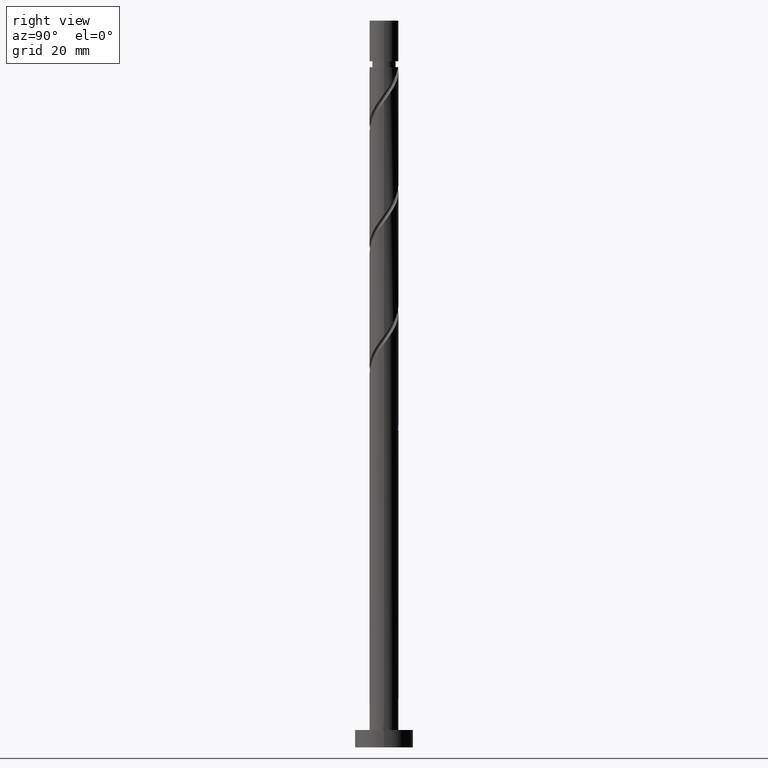
[diagram: clean part render]
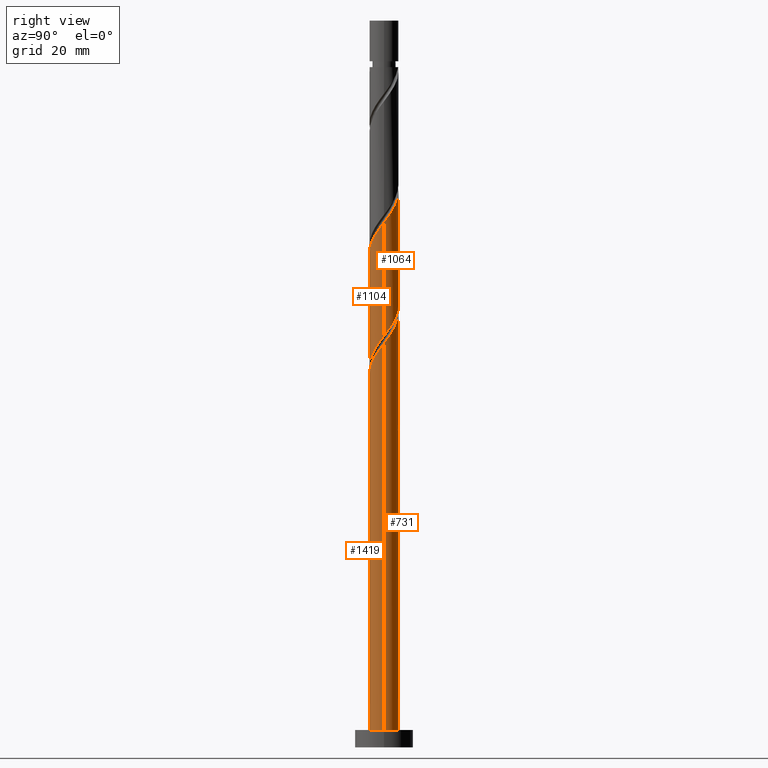
[diagram: same view with one multi-face feature highlighted, each face labeled with its STEP entity id]
A machine part, right view. The highlighted faces form ONE feature: a constant-radius fillet chain: 4 tangent blend faces with common blend radius 2.5 mm. The faces share edges in the B-rep.
Their STEP definitions:
[1] entity #1064 (Cylinder):
#18 = CARTESIAN_POINT ( 'NONE',  ( 1.574936960780884521, 1.981504166768771835, 73.76752431721585879 ) ) ;
#35 = CARTESIAN_POINT ( 'NONE',  ( 1.842554741020975495, 1.689672165344843435, 73.24669098388251598 ) ) ;
#40 = CARTESIAN_POINT ( 'NONE',  ( 2.176354451295369419, 1.230236279064654825, 91.99669098388248756 ) ) ;
#45 = VERTEX_POINT ( 'NONE', #702 ) ;
#78 = DIRECTION ( 'NONE',  ( -0.000000000000000000, -0.000000000000000000, -1.000000000000000000 ) ) ;
#127 = CARTESIAN_POINT ( 'NONE',  ( -2.274511107092401563, 1.037592995212145652, 99.28835765054915896 ) ) ;
#147 = CARTESIAN_POINT ( 'NONE',  ( -2.500000000000000000, 0.000000000000000000, 125.0000000000000000 ) ) ;
#152 = CARTESIAN_POINT ( 'NONE',  ( -2.371204735821961673, 0.8855355973484242416, 80.01752431721583037 ) ) ;
#172 = VERTEX_POINT ( 'NONE', #1423 ) ;
#192 = EDGE_CURVE ( 'NONE', #550, #45, #595, .T. ) ;
#207 = CARTESIAN_POINT ( 'NONE',  ( -2.500000000000000444, 3.103572276123601059E-15, 81.20316009201944496 ) ) ;
#219 = VERTEX_POINT ( 'NONE', #265 ) ;
#225 = AXIS2_PLACEMENT_3D ( 'NONE', #918, #78, #1166 ) ;
#257 = CARTESIAN_POINT ( 'NONE',  ( 2.274511107092399786, 1.037592995212144098, 72.20502431721585879 ) ) ;
#263 = CARTESIAN_POINT ( 'NONE',  ( 0.2839469933725896067, 2.483822478550889112, 95.12169098388250177 ) ) ;
#265 = CARTESIAN_POINT ( 'NONE',  ( -2.500000000000002665, -1.229434428222869666E-15, 100.7068885424122300 ) ) ;
#280 = CARTESIAN_POINT ( 'NONE',  ( 1.037592995212146318, 2.274511107092401563, 94.08002431721583037 ) ) ;
#371 = CARTESIAN_POINT ( 'NONE',  ( 2.500000000000000000, 0.1424343436160837306, 70.97600451456004578 ) ) ;
#379 = CARTESIAN_POINT ( 'NONE',  ( -2.500000000000000888, 0.2512594538147978618, 80.86885551661160321 ) ) ;
#384 = CARTESIAN_POINT ( 'NONE',  ( -2.483822478550889112, 0.2839469933725891626, 100.3300243172158588 ) ) ;
#397 = LINE ( 'NONE', #147, #1518 ) ;
#400 = CARTESIAN_POINT ( 'NONE',  ( 0.6773458265033748260, 2.438849692923736434, 94.60085765054918738 ) ) ;
#425 = DIRECTION ( 'NONE',  ( -0.000000000000000000, -0.000000000000000000, -1.000000000000000000 ) ) ;
#431 = FACE_OUTER_BOUND ( 'NONE', #1025, .T. ) ;
#487 = CARTESIAN_POINT ( 'NONE',  ( 2.500000000000003109, 2.218979211914447642E-15, 90.29022187574555858 ) ) ;
#498 = EDGE_CURVE ( 'NONE', #172, #45, #1019, .T. ) ;
#499 = CARTESIAN_POINT ( 'NONE',  ( -1.037592995212144542, 2.274511107092399342, 77.41335765054918738 ) ) ;
#507 = CARTESIAN_POINT ( 'NONE',  ( 0.1094518397581963065, 2.528795264178038238, 75.85085765054917317 ) ) ;
#512 = CARTESIAN_POINT ( 'NONE',  ( 2.371204735821965226, 0.8855355973484243526, 91.47585765054914475 ) ) ;
#514 = CARTESIAN_POINT ( 'NONE',  ( -2.500000000000000444, 3.103572276123601059E-15, 81.20316009201944496 ) ) ;
#550 = VERTEX_POINT ( 'NONE', #207 ) ;
#553 = CARTESIAN_POINT ( 'NONE',  ( 2.500000000000000000, 3.061616997868382648E-16, 125.0000000000000000 ) ) ;
#595 =( BOUNDED_CURVE ( )  B_SPLINE_CURVE ( 2, ( #514, #379, #876, #152, #1242, #1371, #1469, #972, #499, #1342, #1481, #507, #1460, #1363, #861, #18, #35, #1232, #257, #1349, #1356, #371, #1107 ),
 .UNSPECIFIED., .F., .T. ) 
 B_SPLINE_CURVE_WITH_KNOTS ( ( 3, 2, 2, 2, 2, 2, 2, 2, 2, 2, 2, 3 ),
 ( 0.6795322023138550271, 0.6875000000000000000, 0.6999999999999999556, 0.7125000000000000222, 0.7249999999999999778, 0.7375000000000000444, 0.7500000000000000000, 0.7624999999999999556, 0.7750000000000000222, 0.7874999999999999778, 0.8000000000000000444, 0.8045322023138551382 ),
 .UNSPECIFIED. ) 
 CURVE ( )  GEOMETRIC_REPRESENTATION_ITEM ( )  RATIONAL_B_SPLINE_CURVE ( ( 0.9039174447099354026, 0.9019565955404644786, 0.9090909090909129464, 0.8978984914501291215, 0.9090909090909129464, 0.8978984914501291215, 0.9090909090909129464, 0.8978984914501291215, 0.9090909090909129464, 0.8978984914501291215, 0.9090909090909129464, 0.8978984914501291215, 0.9090909090909129464, 0.8978984914501291215, 0.9090909090909129464, 0.8978984914501291215, 0.9090909090909129464, 0.8978984914501291215, 0.9090909090909129464, 0.8978984914501291215, 0.9090909090909129464, 0.9050328050005773672, 0.9039174447099351806 ) ) 
 REPRESENTATION_ITEM ( '' )  );
#609 = CARTESIAN_POINT ( 'NONE',  ( -2.500000000000003109, 0.1424343436160847298, 100.5173774532049720 ) ) ;
#623 = VECTOR ( 'NONE', #425, 1000.000000000000000 ) ;
#677 = CYLINDRICAL_SURFACE ( 'NONE', #225, 2.500000000000000000 ) ;
#692 =( BOUNDED_CURVE ( )  B_SPLINE_CURVE ( 2, ( #487, #1369, #982, #512, #40, #736, #1214, #1354, #280, #400, #263, #762, #1474, #1230, #729, #1346, #1240, #1128, #127, #743, #384, #609, #1361 ),
 .UNSPECIFIED., .F., .T. ) 
 B_SPLINE_CURVE_WITH_KNOTS ( ( 3, 2, 2, 2, 2, 2, 2, 2, 2, 2, 2, 3 ),
 ( 0.4295322023138553047, 0.4375000000000000000, 0.4499999999999999556, 0.4625000000000000222, 0.4749999999999999778, 0.4875000000000000444, 0.5000000000000000000, 0.5124999999999999556, 0.5250000000000000222, 0.5374999999999999778, 0.5500000000000000444, 0.5545322023138551382 ),
 .UNSPECIFIED. ) 
 CURVE ( )  GEOMETRIC_REPRESENTATION_ITEM ( )  RATIONAL_B_SPLINE_CURVE ( ( 0.9039174447099396215, 0.9019565955404691415, 0.9090909090909173873, 0.8978984914501335624, 0.9090909090909173873, 0.8978984914501335624, 0.9090909090909173873, 0.8978984914501335624, 0.9090909090909173873, 0.8978984914501335624, 0.9090909090909173873, 0.8978984914501335624, 0.9090909090909173873, 0.8978984914501335624, 0.9090909090909173873, 0.8978984914501335624, 0.9090909090909173873, 0.8978984914501335624, 0.9090909090909173873, 0.8978984914501335624, 0.9090909090909173873, 0.9050328050005818081, 0.9039174447099396215 ) ) 
 REPRESENTATION_ITEM ( '' )  );
#702 = CARTESIAN_POINT ( 'NONE',  ( 2.500000000000000444, 3.643323976319009630E-15, 70.78649342535277356 ) ) ;
#729 = CARTESIAN_POINT ( 'NONE',  ( -1.230236279064655269, 2.176354451295369419, 97.20502431721584458 ) ) ;
#736 = CARTESIAN_POINT ( 'NONE',  ( 1.981504166768774056, 1.574936960780884743, 92.51752431721583037 ) ) ;
#743 = CARTESIAN_POINT ( 'NONE',  ( -2.438849692923736434, 0.6773458265033741599, 99.80919098388250177 ) ) ;
#762 = CARTESIAN_POINT ( 'NONE',  ( -0.1094518397581954738, 2.528795264178041347, 95.64252431721583037 ) ) ;
#856 = EDGE_CURVE ( 'NONE', #172, #219, #692, .T. ) ;
#861 = CARTESIAN_POINT ( 'NONE',  ( 1.230236279064654825, 2.176354451295366754, 74.28835765054917317 ) ) ;
#876 = CARTESIAN_POINT ( 'NONE',  ( -2.450000000000001066, 0.4974937185533104822, 80.53835765054918738 ) ) ;
#917 = ORIENTED_EDGE ( 'NONE', *, *, #856, .F. ) ;
#918 = CARTESIAN_POINT ( 'NONE',  ( 0.000000000000000000, 0.000000000000000000, 125.0000000000000000 ) ) ;
#972 = CARTESIAN_POINT ( 'NONE',  ( -1.397840163920915035, 2.110172521261064915, 77.93419098388251598 ) ) ;
#982 = CARTESIAN_POINT ( 'NONE',  ( 2.450000000000002842, 0.4974937185533100381, 90.95502431721581615 ) ) ;
#988 = DIRECTION ( 'NONE',  ( -0.000000000000000000, -0.000000000000000000, -1.000000000000000000 ) ) ;
#1019 = LINE ( 'NONE', #553, #623 ) ;
#1025 = EDGE_LOOP ( 'NONE', ( #917, #1367, #1102, #1504 ) ) ;
#1064 = ADVANCED_FACE ( 'NONE', ( #431 ), #677, .T. ) ;
#1102 = ORIENTED_EDGE ( 'NONE', *, *, #192, .F. ) ;
#1107 = CARTESIAN_POINT ( 'NONE',  ( 2.500000000000000444, 3.643323976319009630E-15, 70.78649342535277356 ) ) ;
#1128 = CARTESIAN_POINT ( 'NONE',  ( -2.110172521261066247, 1.397840163920917034, 98.76752431721583037 ) ) ;
#1166 = DIRECTION ( 'NONE',  ( -1.000000000000000000, 0.000000000000000000, 0.000000000000000000 ) ) ;
#1214 = CARTESIAN_POINT ( 'NONE',  ( 1.689672165344845656, 1.842554741020975273, 93.03835765054918738 ) ) ;
#1230 = CARTESIAN_POINT ( 'NONE',  ( -0.8855355973484247967, 2.371204735821965226, 96.68419098388251598 ) ) ;
#1232 = CARTESIAN_POINT ( 'NONE',  ( 2.110172521261064915, 1.397840163920914813, 72.72585765054915896 ) ) ;
#1240 = CARTESIAN_POINT ( 'NONE',  ( -1.842554741020976161, 1.689672165344845434, 98.24669098388248756 ) ) ;
#1242 = CARTESIAN_POINT ( 'NONE',  ( -2.176354451295366754, 1.230236279064654159, 79.49669098388250177 ) ) ;
#1342 = CARTESIAN_POINT ( 'NONE',  ( -0.6773458265033730497, 2.438849692923733770, 76.89252431721585879 ) ) ;
#1346 = CARTESIAN_POINT ( 'NONE',  ( -1.574936960780885409, 1.981504166768773390, 97.72585765054915896 ) ) ;
#1349 = CARTESIAN_POINT ( 'NONE',  ( 2.438849692923734214, 0.6773458265033729386, 71.68419098388254440 ) ) ;
#1354 = CARTESIAN_POINT ( 'NONE',  ( 1.397840163920917478, 2.110172521261065803, 93.55919098388248756 ) ) ;
#1356 = CARTESIAN_POINT ( 'NONE',  ( 2.483822478550886892, 0.2839469933725879969, 71.16335765054918738 ) ) ;
#1361 = CARTESIAN_POINT ( 'NONE',  ( -2.500000000000003109, -1.229434428222869666E-15, 100.7068885424122300 ) ) ;
#1363 = CARTESIAN_POINT ( 'NONE',  ( 0.8855355973484245746, 2.371204735821961673, 74.80919098388250177 ) ) ;
#1367 = ORIENTED_EDGE ( 'NONE', *, *, #498, .T. ) ;
#1369 = CARTESIAN_POINT ( 'NONE',  ( 2.500000000000002220, 0.2512594538148057999, 90.62452645115342875 ) ) ;
#1371 = CARTESIAN_POINT ( 'NONE',  ( -1.981504166768771835, 1.574936960780884299, 78.97585765054917317 ) ) ;
#1423 = CARTESIAN_POINT ( 'NONE',  ( 2.500000000000002665, 2.218979211914447642E-15, 90.29022187574555858 ) ) ;
#1460 = CARTESIAN_POINT ( 'NONE',  ( 0.4974937185533109263, 2.450000000000001066, 75.33002431721584458 ) ) ;
#1469 = CARTESIAN_POINT ( 'NONE',  ( -1.689672165344843657, 1.842554741020974607, 78.45502431721583037 ) ) ;
#1474 = CARTESIAN_POINT ( 'NONE',  ( -0.4974937185533098716, 2.450000000000002842, 96.16335765054917317 ) ) ;
#1481 = CARTESIAN_POINT ( 'NONE',  ( -0.2839469933725883299, 2.483822478550886892, 76.37169098388251598 ) ) ;
#1504 = ORIENTED_EDGE ( 'NONE', *, *, #1556, .F. ) ;
#1518 = VECTOR ( 'NONE', #988, 1000.000000000000000 ) ;
#1556 = EDGE_CURVE ( 'NONE', #219, #550, #397, .T. ) ;
[2] entity #1104 (Cylinder):
#4 = ORIENTED_EDGE ( 'NONE', *, *, #475, .T. ) ;
#10 = CARTESIAN_POINT ( 'NONE',  ( 0.000000000000000000, 0.000000000000000000, 125.0000000000000000 ) ) ;
#45 = VERTEX_POINT ( 'NONE', #702 ) ;
#58 = CARTESIAN_POINT ( 'NONE',  ( 2.500000000000000444, 3.643323976319009630E-15, 70.78649342535277356 ) ) ;
#88 = LINE ( 'NONE', #1027, #777 ) ;
#90 = CARTESIAN_POINT ( 'NONE',  ( 1.981504166768771835, -1.574936960780884521, 68.55919098388250177 ) ) ;
#137 = CARTESIAN_POINT ( 'NONE',  ( -0.2839469933725891626, -2.483822478550889112, 84.70502431721584458 ) ) ;
#172 = VERTEX_POINT ( 'NONE', #1423 ) ;
#184 = CARTESIAN_POINT ( 'NONE',  ( 2.371204735821961673, -0.8855355973484245746, 69.60085765054918738 ) ) ;
#229 = CARTESIAN_POINT ( 'NONE',  ( 1.230236279064655269, -2.176354451295369419, 86.78835765054917317 ) ) ;
#295 = CARTESIAN_POINT ( 'NONE',  ( 0.6773458265033729386, -2.438849692923733770, 66.47585765054917317 ) ) ;
#308 = EDGE_CURVE ( 'NONE', #45, #774, #378, .T. ) ;
#327 = ORIENTED_EDGE ( 'NONE', *, *, #498, .F. ) ;
#332 = CARTESIAN_POINT ( 'NONE',  ( 2.500000000000000888, -0.2512594538148015810, 70.45218884994493180 ) ) ;
#353 = CARTESIAN_POINT ( 'NONE',  ( 0.1094518397581957375, -2.528795264178041347, 85.22585765054917317 ) ) ;
#359 = FACE_OUTER_BOUND ( 'NONE', #621, .T. ) ;
#378 =( BOUNDED_CURVE ( )  B_SPLINE_CURVE ( 2, ( #58, #332, #907, #184, #568, #90, #1316, #1395, #1014, #295, #521, #658, #708, #1184, #1379, #1553, #822, #1495, #1257, #771, #577, #1308, #1265 ),
 .UNSPECIFIED., .F., .T. ) 
 B_SPLINE_CURVE_WITH_KNOTS ( ( 3, 2, 2, 2, 2, 2, 2, 2, 2, 2, 2, 3 ),
 ( 0.8045322023138551382, 0.8125000000000000000, 0.8249999999999999556, 0.8375000000000000222, 0.8499999999999999778, 0.8625000000000000444, 0.8750000000000000000, 0.8874999999999999556, 0.9000000000000000222, 0.9124999999999999778, 0.9250000000000000444, 0.9295322023138552492 ),
 .UNSPECIFIED. ) 
 CURVE ( )  GEOMETRIC_REPRESENTATION_ITEM ( )  RATIONAL_B_SPLINE_CURVE ( ( 0.9039174447099351806, 0.9019565955404644786, 0.9090909090909129464, 0.8978984914501291215, 0.9090909090909129464, 0.8978984914501291215, 0.9090909090909129464, 0.8978984914501291215, 0.9090909090909129464, 0.8978984914501291215, 0.9090909090909129464, 0.8978984914501291215, 0.9090909090909129464, 0.8978984914501291215, 0.9090909090909129464, 0.8978984914501291215, 0.9090909090909129464, 0.8978984914501291215, 0.9090909090909129464, 0.8978984914501291215, 0.9090909090909129464, 0.9050328050005773672, 0.9039174447099351806 ) ) 
 REPRESENTATION_ITEM ( '' )  );
#425 = DIRECTION ( 'NONE',  ( -0.000000000000000000, -0.000000000000000000, -1.000000000000000000 ) ) ;
#475 = EDGE_CURVE ( 'NONE', #1549, #774, #88, .T. ) ;
#479 = CARTESIAN_POINT ( 'NONE',  ( 2.500000000000003109, 2.218979211914447642E-15, 90.29022187574555858 ) ) ;
#485 = CARTESIAN_POINT ( 'NONE',  ( 0.8855355973484244636, -2.371204735821965226, 86.26752431721581615 ) ) ;
#490 = CARTESIAN_POINT ( 'NONE',  ( 0.4974937185533101491, -2.450000000000002842, 85.74669098388247335 ) ) ;
#498 = EDGE_CURVE ( 'NONE', #172, #45, #1019, .T. ) ;
#521 = CARTESIAN_POINT ( 'NONE',  ( 0.2839469933725881079, -2.483822478550886892, 65.95502431721584458 ) ) ;
#553 = CARTESIAN_POINT ( 'NONE',  ( 2.500000000000000000, 3.061616997868382648E-16, 125.0000000000000000 ) ) ;
#568 = CARTESIAN_POINT ( 'NONE',  ( 2.176354451295366754, -1.230236279064654825, 69.08002431721584458 ) ) ;
#577 = CARTESIAN_POINT ( 'NONE',  ( -2.483822478550886892, -0.2839469933725882189, 60.74669098388251598 ) ) ;
#598 = CARTESIAN_POINT ( 'NONE',  ( -2.176354451295369419, -1.230236279064655269, 81.58002431721584458 ) ) ;
#612 = CARTESIAN_POINT ( 'NONE',  ( -1.037592995212145874, -2.274511107092401563, 83.66335765054917317 ) ) ;
#619 = CARTESIAN_POINT ( 'NONE',  ( 2.483822478550889112, -0.2839469933725892181, 89.91335765054917317 ) ) ;
#621 = EDGE_LOOP ( 'NONE', ( #327, #760, #4, #1253 ) ) ;
#623 = VECTOR ( 'NONE', #425, 1000.000000000000000 ) ;
#658 = CARTESIAN_POINT ( 'NONE',  ( -0.1094518397581966396, -2.528795264178038238, 65.43419098388250177 ) ) ;
#702 = CARTESIAN_POINT ( 'NONE',  ( 2.500000000000000444, 3.643323976319009630E-15, 70.78649342535277356 ) ) ;
#708 = CARTESIAN_POINT ( 'NONE',  ( -0.4974937185533105377, -2.450000000000001066, 64.91335765054918738 ) ) ;
#724 = CARTESIAN_POINT ( 'NONE',  ( -2.500000000000002220, -0.2512594538148079648, 80.20785978448678577 ) ) ;
#739 = CARTESIAN_POINT ( 'NONE',  ( -2.371204735821965226, -0.8855355973484246856, 81.05919098388251598 ) ) ;
#760 = ORIENTED_EDGE ( 'NONE', *, *, #1092, .F. ) ;
#771 = CARTESIAN_POINT ( 'NONE',  ( -2.438849692923733770, -0.6773458265033730497, 61.26752431721585168 ) ) ;
#774 = VERTEX_POINT ( 'NONE', #1222 ) ;
#777 = VECTOR ( 'NONE', #1054, 1000.000000000000000 ) ;
#822 = CARTESIAN_POINT ( 'NONE',  ( -1.842554741020975051, -1.689672165344843435, 62.83002431721583747 ) ) ;
#842 = CARTESIAN_POINT ( 'NONE',  ( 2.110172521261065803, -1.397840163920917478, 88.35085765054917317 ) ) ;
#855 = CARTESIAN_POINT ( 'NONE',  ( -2.500000000000002665, -2.503848164795356253E-15, 79.87355520907890138 ) ) ;
#859 =( BOUNDED_CURVE ( )  B_SPLINE_CURVE ( 2, ( #1087, #724, #965, #739, #598, #1574, #1094, #1077, #612, #1455, #137, #353, #490, #485, #229, #973, #1204, #842, #951, #1108, #619, #1225, #479 ),
 .UNSPECIFIED., .F., .T. ) 
 B_SPLINE_CURVE_WITH_KNOTS ( ( 3, 2, 2, 2, 2, 2, 2, 2, 2, 2, 2, 3 ),
 ( 0.3045322023138553602, 0.3125000000000000000, 0.3249999999999999556, 0.3375000000000000222, 0.3499999999999999778, 0.3625000000000000444, 0.3750000000000000000, 0.3874999999999999556, 0.4000000000000000222, 0.4124999999999999778, 0.4250000000000000444, 0.4295322023138553047 ),
 .UNSPECIFIED. ) 
 CURVE ( )  GEOMETRIC_REPRESENTATION_ITEM ( )  RATIONAL_B_SPLINE_CURVE ( ( 0.9039174447099396215, 0.9019565955404691415, 0.9090909090909173873, 0.8978984914501335624, 0.9090909090909173873, 0.8978984914501335624, 0.9090909090909173873, 0.8978984914501335624, 0.9090909090909173873, 0.8978984914501335624, 0.9090909090909173873, 0.8978984914501335624, 0.9090909090909173873, 0.8978984914501335624, 0.9090909090909173873, 0.8978984914501335624, 0.9090909090909173873, 0.8978984914501335624, 0.9090909090909173873, 0.8978984914501335624, 0.9090909090909173873, 0.9050328050005818081, 0.9039174447099396215 ) ) 
 REPRESENTATION_ITEM ( '' )  );
#907 = CARTESIAN_POINT ( 'NONE',  ( 2.450000000000001066, -0.4974937185533107042, 70.12169098388251598 ) ) ;
#951 = CARTESIAN_POINT ( 'NONE',  ( 2.274511107092401563, -1.037592995212145874, 88.87169098388250177 ) ) ;
#965 = CARTESIAN_POINT ( 'NONE',  ( -2.450000000000002842, -0.4974937185533103712, 80.53835765054917317 ) ) ;
#973 = CARTESIAN_POINT ( 'NONE',  ( 1.574936960780884743, -1.981504166768773390, 87.30919098388250177 ) ) ;
#1014 = CARTESIAN_POINT ( 'NONE',  ( 1.037592995212144320, -2.274511107092399342, 66.99669098388251598 ) ) ;
#1019 = LINE ( 'NONE', #553, #623 ) ;
#1027 = CARTESIAN_POINT ( 'NONE',  ( -2.500000000000000000, 0.000000000000000000, 125.0000000000000000 ) ) ;
#1031 = AXIS2_PLACEMENT_3D ( 'NONE', #10, #1329, #1470 ) ;
#1054 = DIRECTION ( 'NONE',  ( -0.000000000000000000, -0.000000000000000000, -1.000000000000000000 ) ) ;
#1077 = CARTESIAN_POINT ( 'NONE',  ( -1.397840163920917034, -2.110172521261065803, 83.14252431721583037 ) ) ;
#1087 = CARTESIAN_POINT ( 'NONE',  ( -2.500000000000003109, -2.503848164795356253E-15, 79.87355520907890138 ) ) ;
#1092 = EDGE_CURVE ( 'NONE', #1549, #172, #859, .T. ) ;
#1094 = CARTESIAN_POINT ( 'NONE',  ( -1.689672165344845434, -1.842554741020975939, 82.62169098388251598 ) ) ;
#1104 = ADVANCED_FACE ( 'NONE', ( #359 ), #1461, .T. ) ;
#1108 = CARTESIAN_POINT ( 'NONE',  ( 2.438849692923736434, -0.6773458265033743819, 89.39252431721584458 ) ) ;
#1184 = CARTESIAN_POINT ( 'NONE',  ( -0.8855355973484244636, -2.371204735821961673, 64.39252431721584458 ) ) ;
#1204 = CARTESIAN_POINT ( 'NONE',  ( 1.842554741020975939, -1.689672165344845434, 87.83002431721585879 ) ) ;
#1222 = CARTESIAN_POINT ( 'NONE',  ( -2.500000000000000444, 3.103572276123601059E-15, 60.36982675868610215 ) ) ;
#1225 = CARTESIAN_POINT ( 'NONE',  ( 2.500000000000003109, -0.1424343436160797616, 90.10071078653828636 ) ) ;
#1253 = ORIENTED_EDGE ( 'NONE', *, *, #308, .F. ) ;
#1257 = CARTESIAN_POINT ( 'NONE',  ( -2.274511107092399342, -1.037592995212144320, 61.78835765054919449 ) ) ;
#1265 = CARTESIAN_POINT ( 'NONE',  ( -2.500000000000000444, 3.103572276123601059E-15, 60.36982675868610215 ) ) ;
#1308 = CARTESIAN_POINT ( 'NONE',  ( -2.500000000000000444, -0.1424343436160804832, 60.55933784789338148 ) ) ;
#1316 = CARTESIAN_POINT ( 'NONE',  ( 1.689672165344843435, -1.842554741020975051, 68.03835765054917317 ) ) ;
#1329 = DIRECTION ( 'NONE',  ( -0.000000000000000000, -0.000000000000000000, -1.000000000000000000 ) ) ;
#1379 = CARTESIAN_POINT ( 'NONE',  ( -1.230236279064654381, -2.176354451295366754, 63.87169098388252308 ) ) ;
#1395 = CARTESIAN_POINT ( 'NONE',  ( 1.397840163920915035, -2.110172521261064915, 67.51752431721583037 ) ) ;
#1423 = CARTESIAN_POINT ( 'NONE',  ( 2.500000000000002665, 2.218979211914447642E-15, 90.29022187574555858 ) ) ;
#1455 = CARTESIAN_POINT ( 'NONE',  ( -0.6773458265033743819, -2.438849692923736434, 84.18419098388250177 ) ) ;
#1461 = CYLINDRICAL_SURFACE ( 'NONE', #1031, 2.500000000000000000 ) ;
#1470 = DIRECTION ( 'NONE',  ( -1.000000000000000000, 0.000000000000000000, 0.000000000000000000 ) ) ;
#1495 = CARTESIAN_POINT ( 'NONE',  ( -2.110172521261064915, -1.397840163920915035, 62.30919098388250177 ) ) ;
#1549 = VERTEX_POINT ( 'NONE', #855 ) ;
#1553 = CARTESIAN_POINT ( 'NONE',  ( -1.574936960780884521, -1.981504166768771835, 63.35085765054918028 ) ) ;
#1574 = CARTESIAN_POINT ( 'NONE',  ( -1.981504166768773390, -1.574936960780885409, 82.10085765054917317 ) ) ;
[3] entity #731 (Cylinder):
#2 = CARTESIAN_POINT ( 'NONE',  ( 2.371204735821965226, 0.8855355973484243526, 70.64252431721580194 ) ) ;
#5 = DIRECTION ( 'NONE',  ( 0.000000000000000000, 1.000000000000000000, -8.326672684688674053E-15 ) ) ;
#9 = CARTESIAN_POINT ( 'NONE',  ( -1.397840163920915035, 2.110172521261064915, 57.10085765054915896 ) ) ;
#16 = VECTOR ( 'NONE', #1099, 1000.000000000000000 ) ;
#21 = VERTEX_POINT ( 'NONE', #1086 ) ;
#23 = CARTESIAN_POINT ( 'NONE',  ( -2.500000000000000000, 0.000000000000000000, 125.0000000000000000 ) ) ;
#27 = CARTESIAN_POINT ( 'NONE',  ( -2.176354451295366754, 1.230236279064654159, 58.66335765054917317 ) ) ;
#32 = CARTESIAN_POINT ( 'NONE',  ( 2.500000000000002665, 2.218979211914447642E-15, 69.45688854241222998 ) ) ;
#42 = CARTESIAN_POINT ( 'NONE',  ( -0.2839469933725883299, 2.483822478550886892, 55.53835765054918738 ) ) ;
#88 = LINE ( 'NONE', #1027, #777 ) ;
#106 = CYLINDRICAL_SURFACE ( 'NONE', #495, 2.500000000000000000 ) ;
#114 = CARTESIAN_POINT ( 'NONE',  ( -2.483822478550889112, 0.2839469933725891626, 58.66335765054915896 ) ) ;
#145 = CARTESIAN_POINT ( 'NONE',  ( -2.499999999999999556, 0.2512594538148047452, 60.03552218327826040 ) ) ;
#159 =( BOUNDED_CURVE ( )  B_SPLINE_CURVE ( 2, ( #234, #1093, #484, #1069, #711, #1202, #589, #717, #114, #597, #1573 ),
 .UNSPECIFIED., .F., .T. ) 
 B_SPLINE_CURVE_WITH_KNOTS ( ( 3, 2, 2, 2, 2, 3 ),
 ( 0.000000000000000000, 0.01249999999999995559, 0.02500000000000002220, 0.03749999999999997780, 0.05000000000000004441, 0.05453220231385519368 ),
 .UNSPECIFIED. ) 
 CURVE ( )  GEOMETRIC_REPRESENTATION_ITEM ( )  RATIONAL_B_SPLINE_CURVE ( ( 0.9090909090909173873, 0.8978984914501335624, 0.9090909090909173873, 0.8978984914501335624, 0.9090909090909173873, 0.8978984914501335624, 0.9090909090909173873, 0.8978984914501335624, 0.9090909090909173873, 0.9050328050005818081, 0.9039174447099396215 ) ) 
 REPRESENTATION_ITEM ( '' )  );
#170 = EDGE_CURVE ( 'NONE', #1126, #493, #159, .T. ) ;
#209 = CARTESIAN_POINT ( 'NONE',  ( -2.500000000000003109, -2.503848164795356253E-15, 79.87355520907890138 ) ) ;
#217 = CARTESIAN_POINT ( 'NONE',  ( 0.000000000000000000, 0.000000000000000000, 3.000000000000000000 ) ) ;
#234 = CARTESIAN_POINT ( 'NONE',  ( -0.4974937185533098716, 2.450000000000002842, 54.49669098388250887 ) ) ;
#238 = CARTESIAN_POINT ( 'NONE',  ( -2.483822478550889112, 0.2839469933725891626, 79.49669098388251598 ) ) ;
#240 = EDGE_CURVE ( 'NONE', #767, #423, #635, .T. ) ;
#256 = EDGE_CURVE ( 'NONE', #774, #21, #370, .T. ) ;
#261 = ORIENTED_EDGE ( 'NONE', *, *, #256, .F. ) ;
#290 = ORIENTED_EDGE ( 'NONE', *, *, #1203, .T. ) ;
#349 = CIRCLE ( 'NONE', #546, 2.500000000000000000 ) ;
#356 = CARTESIAN_POINT ( 'NONE',  ( 2.450000000000002842, 0.4974937185533100381, 70.12169098388251598 ) ) ;
#362 = CARTESIAN_POINT ( 'NONE',  ( 0.2839469933725896067, 2.483822478550889112, 74.28835765054917317 ) ) ;
#365 = CARTESIAN_POINT ( 'NONE',  ( -0.4974937185533098716, 2.450000000000002842, 54.49669098388250177 ) ) ;
#370 =( BOUNDED_CURVE ( )  B_SPLINE_CURVE ( 2, ( #986, #145, #1116, #1250, #27, #387, #756, #9, #999, #1488, #42, #1224, #395 ),
 .UNSPECIFIED., .F., .T. ) 
 B_SPLINE_CURVE_WITH_KNOTS ( ( 3, 2, 2, 2, 2, 2, 3 ),
 ( 0.9295322023138552492, 0.9375000000000000000, 0.9499999999999999556, 0.9625000000000000222, 0.9749999999999999778, 0.9875000000000000444, 1.000000000000000000 ),
 .UNSPECIFIED. ) 
 CURVE ( )  GEOMETRIC_REPRESENTATION_ITEM ( )  RATIONAL_B_SPLINE_CURVE ( ( 0.9039174447099351806, 0.9019565955404647006, 0.9090909090909129464, 0.8978984914501291215, 0.9090909090909129464, 0.8978984914501291215, 0.9090909090909129464, 0.8978984914501291215, 0.9090909090909129464, 0.8978984914501291215, 0.9090909090909129464, 0.8978984914501291215, 0.9090909090909129464 ) ) 
 REPRESENTATION_ITEM ( '' )  );
#387 = CARTESIAN_POINT ( 'NONE',  ( -1.981504166768771835, 1.574936960780884299, 58.14252431721583037 ) ) ;
#395 = CARTESIAN_POINT ( 'NONE',  ( 0.4974937185533109263, 2.450000000000000622, 54.49669098388249466 ) ) ;
#406 = ORIENTED_EDGE ( 'NONE', *, *, #170, .F. ) ;
#423 = VERTEX_POINT ( 'NONE', #1416 ) ;
#444 = VECTOR ( 'NONE', #616, 1000.000000000000000 ) ;
#452 = DIRECTION ( 'NONE',  ( -1.000000000000000000, 0.000000000000000000, 0.000000000000000000 ) ) ;
#466 = CARTESIAN_POINT ( 'NONE',  ( 1.981504166768774056, 1.574936960780884743, 71.68419098388253019 ) ) ;
#469 = ORIENTED_EDGE ( 'NONE', *, *, #240, .T. ) ;
#475 = EDGE_CURVE ( 'NONE', #1549, #774, #88, .T. ) ;
#476 = CARTESIAN_POINT ( 'NONE',  ( -2.274511107092401563, 1.037592995212145652, 78.45502431721581615 ) ) ;
#482 = CARTESIAN_POINT ( 'NONE',  ( 1.689672165344845656, 1.842554741020975273, 72.20502431721583037 ) ) ;
#484 = CARTESIAN_POINT ( 'NONE',  ( -1.230236279064655269, 2.176354451295369419, 55.53835765054917317 ) ) ;
#493 = VERTEX_POINT ( 'NONE', #1517 ) ;
#495 = AXIS2_PLACEMENT_3D ( 'NONE', #586, #603, #452 ) ;
#546 = AXIS2_PLACEMENT_3D ( 'NONE', #848, #1335, #5 ) ;
#586 = CARTESIAN_POINT ( 'NONE',  ( 0.000000000000000000, 0.000000000000000000, 125.0000000000000000 ) ) ;
#589 = CARTESIAN_POINT ( 'NONE',  ( -2.274511107092401563, 1.037592995212145652, 57.62169098388250887 ) ) ;
#593 = CARTESIAN_POINT ( 'NONE',  ( 1.037592995212146318, 2.274511107092401563, 73.24669098388250177 ) ) ;
#597 = CARTESIAN_POINT ( 'NONE',  ( -2.500000000000003109, 0.1424343436160830090, 58.85071078653830057 ) ) ;
#603 = DIRECTION ( 'NONE',  ( -0.000000000000000000, -0.000000000000000000, -1.000000000000000000 ) ) ;
#616 = DIRECTION ( 'NONE',  ( -0.000000000000000000, -0.000000000000000000, -1.000000000000000000 ) ) ;
#624 = LINE ( 'NONE', #23, #444 ) ;
#635 = LINE ( 'NONE', #745, #16 ) ;
#640 = EDGE_CURVE ( 'NONE', #767, #1549, #1300, .T. ) ;
#668 = EDGE_LOOP ( 'NONE', ( #1165, #469, #1523, #1558, #406, #290, #261, #1017 ) ) ;
#689 = CARTESIAN_POINT ( 'NONE',  ( -2.500000000000003109, 0.1424343436160777909, 79.68404411987164337 ) ) ;
#711 = CARTESIAN_POINT ( 'NONE',  ( -1.842554741020976161, 1.689672165344845434, 56.58002431721583747 ) ) ;
#717 = CARTESIAN_POINT ( 'NONE',  ( -2.438849692923736434, 0.6773458265033741599, 58.14252431721581615 ) ) ;
#731 = ADVANCED_FACE ( 'NONE', ( #1547 ), #106, .T. ) ;
#745 = CARTESIAN_POINT ( 'NONE',  ( 2.500000000000000000, 3.061616997868382648E-16, 125.0000000000000000 ) ) ;
#747 = CARTESIAN_POINT ( 'NONE',  ( -2.500000000000000000, 0.000000000000000000, 3.000000000000000000 ) ) ;
#749 = EDGE_CURVE ( 'NONE', #423, #1439, #751, .T. ) ;
#751 = CIRCLE ( 'NONE', #805, 2.500000000000000000 ) ;
#756 = CARTESIAN_POINT ( 'NONE',  ( -1.689672165344843657, 1.842554741020974607, 57.62169098388253019 ) ) ;
#758 = EDGE_CURVE ( 'NONE', #493, #1439, #624, .T. ) ;
#767 = VERTEX_POINT ( 'NONE', #32 ) ;
#774 = VERTEX_POINT ( 'NONE', #1222 ) ;
#777 = VECTOR ( 'NONE', #1054, 1000.000000000000000 ) ;
#805 = AXIS2_PLACEMENT_3D ( 'NONE', #217, #1074, #1444 ) ;
#823 = CARTESIAN_POINT ( 'NONE',  ( 2.500000000000002665, 2.218979211914447642E-15, 69.45688854241222998 ) ) ;
#839 = CARTESIAN_POINT ( 'NONE',  ( -1.574936960780885409, 1.981504166768773390, 76.89252431721583037 ) ) ;
#848 = CARTESIAN_POINT ( 'NONE',  ( 0.000000000000000000, 0.000000000000000000, 54.49669098388251598 ) ) ;
#851 = CARTESIAN_POINT ( 'NONE',  ( -2.438849692923736434, 0.6773458265033741599, 78.97585765054917317 ) ) ;
#855 = CARTESIAN_POINT ( 'NONE',  ( -2.500000000000002665, -2.503848164795356253E-15, 79.87355520907890138 ) ) ;
#947 = CARTESIAN_POINT ( 'NONE',  ( -0.1094518397581954738, 2.528795264178041347, 74.80919098388250177 ) ) ;
#962 = CARTESIAN_POINT ( 'NONE',  ( 2.500000000000002665, 0.2512594538148049672, 69.79119311782008594 ) ) ;
#986 = CARTESIAN_POINT ( 'NONE',  ( -2.500000000000000444, 3.103572276123601059E-15, 60.36982675868610215 ) ) ;
#999 = CARTESIAN_POINT ( 'NONE',  ( -1.037592995212144542, 2.274511107092399342, 56.58002431721584458 ) ) ;
#1017 = ORIENTED_EDGE ( 'NONE', *, *, #475, .F. ) ;
#1027 = CARTESIAN_POINT ( 'NONE',  ( -2.500000000000000000, 0.000000000000000000, 125.0000000000000000 ) ) ;
#1054 = DIRECTION ( 'NONE',  ( -0.000000000000000000, -0.000000000000000000, -1.000000000000000000 ) ) ;
#1069 = CARTESIAN_POINT ( 'NONE',  ( -1.574936960780885409, 1.981504166768773390, 56.05919098388250177 ) ) ;
#1074 = DIRECTION ( 'NONE',  ( 0.000000000000000000, 0.000000000000000000, 1.000000000000000000 ) ) ;
#1082 = CARTESIAN_POINT ( 'NONE',  ( -1.230236279064655269, 2.176354451295369419, 76.37169098388250177 ) ) ;
#1086 = CARTESIAN_POINT ( 'NONE',  ( 0.4974937185533109263, 2.450000000000000622, 54.49669098388250177 ) ) ;
#1093 = CARTESIAN_POINT ( 'NONE',  ( -0.8855355973484247967, 2.371204735821965226, 55.01752431721583747 ) ) ;
#1099 = DIRECTION ( 'NONE',  ( -0.000000000000000000, -0.000000000000000000, -1.000000000000000000 ) ) ;
#1116 = CARTESIAN_POINT ( 'NONE',  ( -2.450000000000001066, 0.4974937185533104822, 59.70502431721584458 ) ) ;
#1126 = VERTEX_POINT ( 'NONE', #365 ) ;
#1165 = ORIENTED_EDGE ( 'NONE', *, *, #640, .F. ) ;
#1185 = CARTESIAN_POINT ( 'NONE',  ( 1.397840163920917478, 2.110172521261065803, 72.72585765054915896 ) ) ;
#1202 = CARTESIAN_POINT ( 'NONE',  ( -2.110172521261066247, 1.397840163920917034, 57.10085765054917317 ) ) ;
#1203 = EDGE_CURVE ( 'NONE', #1126, #21, #349, .T. ) ;
#1222 = CARTESIAN_POINT ( 'NONE',  ( -2.500000000000000444, 3.103572276123601059E-15, 60.36982675868610215 ) ) ;
#1224 = CARTESIAN_POINT ( 'NONE',  ( 0.1094518397581963065, 2.528795264178038238, 55.01752431721584458 ) ) ;
#1250 = CARTESIAN_POINT ( 'NONE',  ( -2.371204735821961673, 0.8855355973484242416, 59.18419098388252308 ) ) ;
#1300 =( BOUNDED_CURVE ( )  B_SPLINE_CURVE ( 2, ( #823, #962, #356, #2, #1332, #466, #482, #1185, #593, #1458, #362, #947, #1309, #1436, #1082, #839, #1562, #1570, #476, #851, #238, #689, #209 ),
 .UNSPECIFIED., .F., .T. ) 
 B_SPLINE_CURVE_WITH_KNOTS ( ( 3, 2, 2, 2, 2, 2, 2, 2, 2, 2, 2, 3 ),
 ( 0.1795322023138552769, 0.1875000000000000000, 0.1999999999999999556, 0.2125000000000000222, 0.2249999999999999778, 0.2375000000000000444, 0.2500000000000000000, 0.2624999999999999556, 0.2750000000000000222, 0.2874999999999999778, 0.3000000000000000444, 0.3045322023138553602 ),
 .UNSPECIFIED. ) 
 CURVE ( )  GEOMETRIC_REPRESENTATION_ITEM ( )  RATIONAL_B_SPLINE_CURVE ( ( 0.9039174447099397325, 0.9019565955404691415, 0.9090909090909173873, 0.8978984914501335624, 0.9090909090909173873, 0.8978984914501335624, 0.9090909090909173873, 0.8978984914501335624, 0.9090909090909173873, 0.8978984914501335624, 0.9090909090909173873, 0.8978984914501335624, 0.9090909090909173873, 0.8978984914501335624, 0.9090909090909173873, 0.8978984914501335624, 0.9090909090909173873, 0.8978984914501335624, 0.9090909090909173873, 0.8978984914501335624, 0.9090909090909173873, 0.9050328050005818081, 0.9039174447099396215 ) ) 
 REPRESENTATION_ITEM ( '' )  );
#1309 = CARTESIAN_POINT ( 'NONE',  ( -0.4974937185533098716, 2.450000000000002842, 75.33002431721583037 ) ) ;
#1332 = CARTESIAN_POINT ( 'NONE',  ( 2.176354451295369419, 1.230236279064654825, 71.16335765054918738 ) ) ;
#1335 = DIRECTION ( 'NONE',  ( -1.540743955509788682E-30, -6.938893903907233111E-15, -1.000000000000000000 ) ) ;
#1416 = CARTESIAN_POINT ( 'NONE',  ( 2.500000000000000000, 3.061616997868382648E-16, 3.000000000000000000 ) ) ;
#1436 = CARTESIAN_POINT ( 'NONE',  ( -0.8855355973484247967, 2.371204735821965226, 75.85085765054917317 ) ) ;
#1439 = VERTEX_POINT ( 'NONE', #747 ) ;
#1444 = DIRECTION ( 'NONE',  ( 1.000000000000000000, 0.000000000000000000, 0.000000000000000000 ) ) ;
#1458 = CARTESIAN_POINT ( 'NONE',  ( 0.6773458265033748260, 2.438849692923736434, 73.76752431721583037 ) ) ;
#1488 = CARTESIAN_POINT ( 'NONE',  ( -0.6773458265033730497, 2.438849692923733770, 56.05919098388250887 ) ) ;
#1517 = CARTESIAN_POINT ( 'NONE',  ( -2.500000000000002665, -2.503848164795356253E-15, 59.04022187574557279 ) ) ;
#1523 = ORIENTED_EDGE ( 'NONE', *, *, #749, .T. ) ;
#1547 = FACE_OUTER_BOUND ( 'NONE', #668, .T. ) ;
#1549 = VERTEX_POINT ( 'NONE', #855 ) ;
#1558 = ORIENTED_EDGE ( 'NONE', *, *, #758, .F. ) ;
#1562 = CARTESIAN_POINT ( 'NONE',  ( -1.842554741020976161, 1.689672165344845434, 77.41335765054917317 ) ) ;
#1570 = CARTESIAN_POINT ( 'NONE',  ( -2.110172521261066247, 1.397840163920917034, 77.93419098388250177 ) ) ;
#1573 = CARTESIAN_POINT ( 'NONE',  ( -2.500000000000003109, -2.503848164795356253E-15, 59.04022187574557279 ) ) ;
[4] entity #1419 (Cylinder):
#16 = VECTOR ( 'NONE', #1099, 1000.000000000000000 ) ;
#20 = DIRECTION ( 'NONE',  ( -1.000000000000000000, 0.000000000000000000, 0.000000000000000000 ) ) ;
#23 = CARTESIAN_POINT ( 'NONE',  ( -2.500000000000000000, 0.000000000000000000, 125.0000000000000000 ) ) ;
#32 = CARTESIAN_POINT ( 'NONE',  ( 2.500000000000002665, 2.218979211914447642E-15, 69.45688854241222998 ) ) ;
#91 = CARTESIAN_POINT ( 'NONE',  ( 2.274511107092401563, -1.037592995212145874, 68.03835765054917317 ) ) ;
#99 = CARTESIAN_POINT ( 'NONE',  ( 0.4974937185533101491, -2.450000000000002842, 64.91335765054917317 ) ) ;
#112 = CARTESIAN_POINT ( 'NONE',  ( 2.500000000000003109, -0.1424343436160806220, 69.26737745320497197 ) ) ;
#154 = CARTESIAN_POINT ( 'NONE',  ( 0.000000000000000000, 0.000000000000000000, 125.0000000000000000 ) ) ;
#179 = ORIENTED_EDGE ( 'NONE', *, *, #634, .F. ) ;
#227 = CARTESIAN_POINT ( 'NONE',  ( 2.110172521261065803, -1.397840163920917478, 67.51752431721583037 ) ) ;
#232 = CARTESIAN_POINT ( 'NONE',  ( 2.500000000000002665, 2.218979211914447642E-15, 69.45688854241222998 ) ) ;
#240 = EDGE_CURVE ( 'NONE', #767, #423, #635, .T. ) ;
#269 = ORIENTED_EDGE ( 'NONE', *, *, #240, .F. ) ;
#333 = CARTESIAN_POINT ( 'NONE',  ( -0.2839469933725891626, -2.483822478550889112, 63.87169098388250887 ) ) ;
#341 = CARTESIAN_POINT ( 'NONE',  ( 0.1094518397581957375, -2.528795264178041347, 64.39252431721584458 ) ) ;
#366 =( BOUNDED_CURVE ( )  B_SPLINE_CURVE ( 2, ( #1326, #1554, #968, #459, #845, #1317, #709, #1090, #1429, #1194, #333, #341, #99, #578, #715, #699, #831, #227, #91, #1066, #1200, #112, #232 ),
 .UNSPECIFIED., .F., .T. ) 
 B_SPLINE_CURVE_WITH_KNOTS ( ( 3, 2, 2, 2, 2, 2, 2, 2, 2, 2, 2, 3 ),
 ( 0.05453220231385519368, 0.06250000000000000000, 0.07499999999999995559, 0.08750000000000002220, 0.09999999999999997780, 0.1125000000000000444, 0.1250000000000000000, 0.1374999999999999556, 0.1500000000000000222, 0.1624999999999999778, 0.1750000000000000444, 0.1795322023138552769 ),
 .UNSPECIFIED. ) 
 CURVE ( )  GEOMETRIC_REPRESENTATION_ITEM ( )  RATIONAL_B_SPLINE_CURVE ( ( 0.9039174447099396215, 0.9019565955404690305, 0.9090909090909173873, 0.8978984914501335624, 0.9090909090909173873, 0.8978984914501335624, 0.9090909090909173873, 0.8978984914501335624, 0.9090909090909173873, 0.8978984914501335624, 0.9090909090909173873, 0.8978984914501335624, 0.9090909090909173873, 0.8978984914501335624, 0.9090909090909173873, 0.8978984914501335624, 0.9090909090909173873, 0.8978984914501335624, 0.9090909090909173873, 0.8978984914501335624, 0.9090909090909173873, 0.9050328050005818081, 0.9039174447099397325 ) ) 
 REPRESENTATION_ITEM ( '' )  );
#423 = VERTEX_POINT ( 'NONE', #1416 ) ;
#444 = VECTOR ( 'NONE', #616, 1000.000000000000000 ) ;
#459 = CARTESIAN_POINT ( 'NONE',  ( -2.371204735821965226, -0.8855355973484246856, 60.22585765054918028 ) ) ;
#493 = VERTEX_POINT ( 'NONE', #1517 ) ;
#575 = CIRCLE ( 'NONE', #1238, 2.500000000000000000 ) ;
#578 = CARTESIAN_POINT ( 'NONE',  ( 0.8855355973484244636, -2.371204735821965226, 65.43419098388248756 ) ) ;
#616 = DIRECTION ( 'NONE',  ( -0.000000000000000000, -0.000000000000000000, -1.000000000000000000 ) ) ;
#620 = FACE_OUTER_BOUND ( 'NONE', #1454, .T. ) ;
#624 = LINE ( 'NONE', #23, #444 ) ;
#629 = DIRECTION ( 'NONE',  ( 0.000000000000000000, 0.000000000000000000, 1.000000000000000000 ) ) ;
#634 = EDGE_CURVE ( 'NONE', #493, #767, #366, .T. ) ;
#635 = LINE ( 'NONE', #745, #16 ) ;
#699 = CARTESIAN_POINT ( 'NONE',  ( 1.574936960780884743, -1.981504166768773390, 66.47585765054915896 ) ) ;
#709 = CARTESIAN_POINT ( 'NONE',  ( -1.689672165344845434, -1.842554741020975939, 61.78835765054915896 ) ) ;
#715 = CARTESIAN_POINT ( 'NONE',  ( 1.230236279064655269, -2.176354451295369419, 65.95502431721584458 ) ) ;
#745 = CARTESIAN_POINT ( 'NONE',  ( 2.500000000000000000, 3.061616997868382648E-16, 125.0000000000000000 ) ) ;
#747 = CARTESIAN_POINT ( 'NONE',  ( -2.500000000000000000, 0.000000000000000000, 3.000000000000000000 ) ) ;
#758 = EDGE_CURVE ( 'NONE', #493, #1439, #624, .T. ) ;
#767 = VERTEX_POINT ( 'NONE', #32 ) ;
#831 = CARTESIAN_POINT ( 'NONE',  ( 1.842554741020975939, -1.689672165344845434, 66.99669098388250177 ) ) ;
#845 = CARTESIAN_POINT ( 'NONE',  ( -2.176354451295369419, -1.230236279064655269, 60.74669098388250177 ) ) ;
#968 = CARTESIAN_POINT ( 'NONE',  ( -2.450000000000002842, -0.4974937185533103712, 59.70502431721583747 ) ) ;
#994 = CARTESIAN_POINT ( 'NONE',  ( 0.000000000000000000, 0.000000000000000000, 3.000000000000000000 ) ) ;
#1066 = CARTESIAN_POINT ( 'NONE',  ( 2.438849692923736434, -0.6773458265033743819, 68.55919098388248756 ) ) ;
#1090 = CARTESIAN_POINT ( 'NONE',  ( -1.397840163920917034, -2.110172521261065803, 62.30919098388249466 ) ) ;
#1099 = DIRECTION ( 'NONE',  ( -0.000000000000000000, -0.000000000000000000, -1.000000000000000000 ) ) ;
#1109 = DIRECTION ( 'NONE',  ( -0.000000000000000000, -0.000000000000000000, -1.000000000000000000 ) ) ;
#1119 = ORIENTED_EDGE ( 'NONE', *, *, #758, .T. ) ;
#1194 = CARTESIAN_POINT ( 'NONE',  ( -0.6773458265033743819, -2.438849692923736434, 63.35085765054918028 ) ) ;
#1200 = CARTESIAN_POINT ( 'NONE',  ( 2.483822478550889112, -0.2839469933725892181, 69.08002431721583037 ) ) ;
#1235 = DIRECTION ( 'NONE',  ( 1.000000000000000000, 0.000000000000000000, 0.000000000000000000 ) ) ;
#1238 = AXIS2_PLACEMENT_3D ( 'NONE', #994, #629, #1235 ) ;
#1317 = CARTESIAN_POINT ( 'NONE',  ( -1.981504166768773390, -1.574936960780885409, 61.26752431721584458 ) ) ;
#1326 = CARTESIAN_POINT ( 'NONE',  ( -2.500000000000003109, -2.503848164795356253E-15, 59.04022187574557279 ) ) ;
#1351 = CYLINDRICAL_SURFACE ( 'NONE', #1468, 2.500000000000000000 ) ;
#1416 = CARTESIAN_POINT ( 'NONE',  ( 2.500000000000000000, 3.061616997868382648E-16, 3.000000000000000000 ) ) ;
#1419 = ADVANCED_FACE ( 'NONE', ( #620 ), #1351, .T. ) ;
#1429 = CARTESIAN_POINT ( 'NONE',  ( -1.037592995212145874, -2.274511107092401563, 62.83002431721583747 ) ) ;
#1431 = ORIENTED_EDGE ( 'NONE', *, *, #1534, .T. ) ;
#1439 = VERTEX_POINT ( 'NONE', #747 ) ;
#1454 = EDGE_LOOP ( 'NONE', ( #269, #179, #1119, #1431 ) ) ;
#1468 = AXIS2_PLACEMENT_3D ( 'NONE', #154, #1109, #20 ) ;
#1517 = CARTESIAN_POINT ( 'NONE',  ( -2.500000000000002665, -2.503848164795356253E-15, 59.04022187574557279 ) ) ;
#1534 = EDGE_CURVE ( 'NONE', #1439, #423, #575, .T. ) ;
#1554 = CARTESIAN_POINT ( 'NONE',  ( -2.500000000000002665, -0.2512594538148028023, 59.37452645115341454 ) ) ;